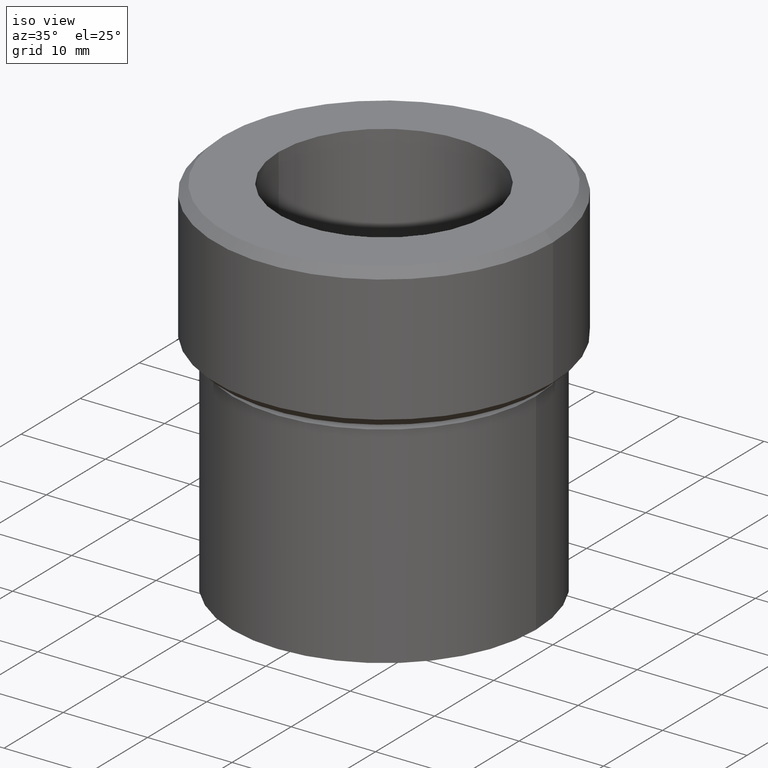
[diagram: clean part render]
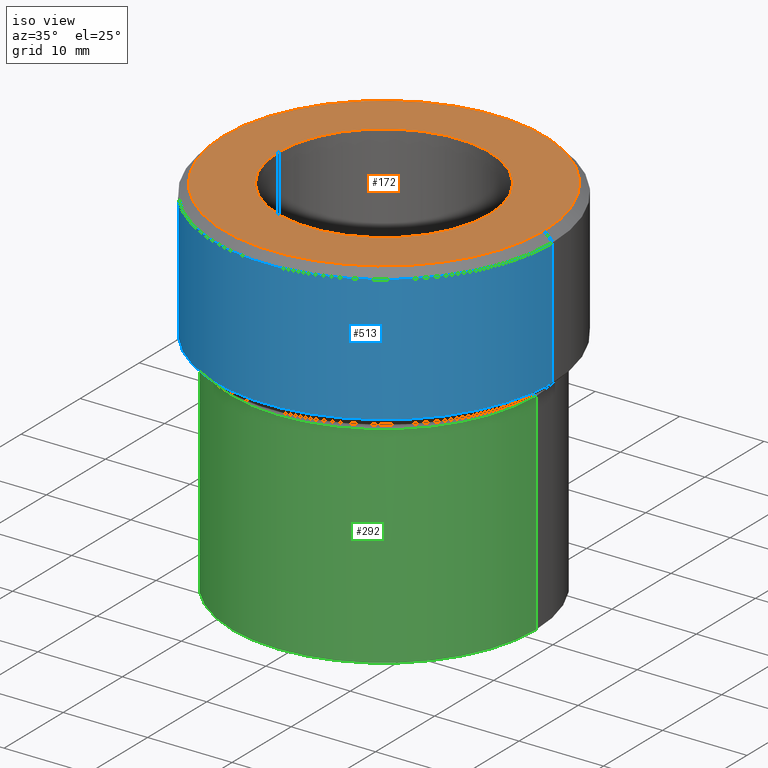
[diagram: same view with three faces highlighted in distinct colors, each labeled with its STEP entity id]
A machine part, iso view with three faces highlighted in distinct colors.
Their STEP definitions:

[orange] entity #172 — the highlighted planar face has unit normal (0, -0, 1).
#6 = CARTESIAN_POINT ( 'NONE',  ( 12.50000000000000000, 0.000000000000000000, 0.000000000000000000 ) ) ;
#29 = EDGE_LOOP ( 'NONE', ( #263, #333 ) ) ;
#34 = DIRECTION ( 'NONE',  ( -0.000000000000000000, -0.000000000000000000, 1.000000000000000000 ) ) ;
#38 = FACE_BOUND ( 'NONE', #29, .T. ) ;
#88 = AXIS2_PLACEMENT_3D ( 'NONE', #170, #214, #484 ) ;
#90 = CARTESIAN_POINT ( 'NONE',  ( 19.00000000000001066, 2.388061258337339728E-15, 0.000000000000000000 ) ) ;
#95 = CARTESIAN_POINT ( 'NONE',  ( 0.000000000000000000, 0.000000000000000000, 0.000000000000000000 ) ) ;
#100 = VERTEX_POINT ( 'NONE', #6 ) ;
#109 = VERTEX_POINT ( 'NONE', #234 ) ;
#129 = CARTESIAN_POINT ( 'NONE',  ( 0.000000000000000000, 0.000000000000000000, 0.000000000000000000 ) ) ;
#134 = CIRCLE ( 'NONE', #477, 19.00000000000001066 ) ;
#162 = EDGE_CURVE ( 'NONE', #100, #109, #495, .T. ) ;
#167 = CARTESIAN_POINT ( 'NONE',  ( 0.000000000000000000, 0.000000000000000000, 0.000000000000000000 ) ) ;
#170 = CARTESIAN_POINT ( 'NONE',  ( 0.000000000000000000, 0.000000000000000000, 0.000000000000000000 ) ) ;
#172 = ADVANCED_FACE ( 'NONE', ( #38, #401 ), #248, .T. ) ;
#191 = EDGE_CURVE ( 'NONE', #109, #100, #359, .T. ) ;
#209 = AXIS2_PLACEMENT_3D ( 'NONE', #167, #482, #441 ) ;
#214 = DIRECTION ( 'NONE',  ( -0.000000000000000000, -0.000000000000000000, 1.000000000000000000 ) ) ;
#234 = CARTESIAN_POINT ( 'NONE',  ( -12.50000000000000000, 1.530808498934191521E-15, 0.000000000000000000 ) ) ;
#246 = DIRECTION ( 'NONE',  ( 1.000000000000000000, 0.000000000000000000, 0.000000000000000000 ) ) ;
#248 = PLANE ( 'NONE',  #209 ) ;
#261 = ORIENTED_EDGE ( 'NONE', *, *, #273, .T. ) ;
#263 = ORIENTED_EDGE ( 'NONE', *, *, #162, .F. ) ;
#266 = EDGE_CURVE ( 'NONE', #505, #479, #134, .T. ) ;
#268 = AXIS2_PLACEMENT_3D ( 'NONE', #396, #427, #246 ) ;
#273 = EDGE_CURVE ( 'NONE', #479, #505, #430, .T. ) ;
#282 = DIRECTION ( 'NONE',  ( 1.000000000000000000, 0.000000000000000000, 0.000000000000000000 ) ) ;
#332 = DIRECTION ( 'NONE',  ( 1.000000000000000000, 0.000000000000000000, 0.000000000000000000 ) ) ;
#333 = ORIENTED_EDGE ( 'NONE', *, *, #191, .F. ) ;
#359 = CIRCLE ( 'NONE', #88, 12.50000000000000000 ) ;
#390 = EDGE_LOOP ( 'NONE', ( #481, #261 ) ) ;
#396 = CARTESIAN_POINT ( 'NONE',  ( 0.000000000000000000, 0.000000000000000000, 0.000000000000000000 ) ) ;
#401 = FACE_OUTER_BOUND ( 'NONE', #390, .T. ) ;
#427 = DIRECTION ( 'NONE',  ( -0.000000000000000000, -0.000000000000000000, 1.000000000000000000 ) ) ;
#430 = CIRCLE ( 'NONE', #268, 19.00000000000001066 ) ;
#439 = AXIS2_PLACEMENT_3D ( 'NONE', #129, #34, #332 ) ;
#441 = DIRECTION ( 'NONE',  ( 1.000000000000000000, 0.000000000000000000, 0.000000000000000000 ) ) ;
#458 = CARTESIAN_POINT ( 'NONE',  ( -19.00000000000001066, 0.000000000000000000, 0.000000000000000000 ) ) ;
#468 = DIRECTION ( 'NONE',  ( -0.000000000000000000, -0.000000000000000000, 1.000000000000000000 ) ) ;
#477 = AXIS2_PLACEMENT_3D ( 'NONE', #95, #468, #282 ) ;
#479 = VERTEX_POINT ( 'NONE', #90 ) ;
#481 = ORIENTED_EDGE ( 'NONE', *, *, #266, .T. ) ;
#482 = DIRECTION ( 'NONE',  ( 0.000000000000000000, -0.000000000000000000, 1.000000000000000000 ) ) ;
#484 = DIRECTION ( 'NONE',  ( 1.000000000000000000, 0.000000000000000000, 0.000000000000000000 ) ) ;
#495 = CIRCLE ( 'NONE', #439, 12.50000000000000000 ) ;
#505 = VERTEX_POINT ( 'NONE', #458 ) ;

[blue] entity #513 — the highlighted cylindrical surface (partial cylindrical patch) has radius 20 mm, axis along (-0, -0, 1).
#2 = VECTOR ( 'NONE', #78, 1000.000000000000000 ) ;
#11 = AXIS2_PLACEMENT_3D ( 'NONE', #447, #340, #424 ) ;
#78 = DIRECTION ( 'NONE',  ( -0.000000000000000000, -0.000000000000000000, 1.000000000000000000 ) ) ;
#83 = VERTEX_POINT ( 'NONE', #488 ) ;
#105 = AXIS2_PLACEMENT_3D ( 'NONE', #383, #135, #307 ) ;
#108 = ORIENTED_EDGE ( 'NONE', *, *, #236, .F. ) ;
#111 = EDGE_LOOP ( 'NONE', ( #108, #498, #119, #433 ) ) ;
#114 = DIRECTION ( 'NONE',  ( -0.000000000000000000, -0.000000000000000000, 1.000000000000000000 ) ) ;
#115 = CARTESIAN_POINT ( 'NONE',  ( 20.00000000000000000, 0.000000000000000000, -0.9999999999999904521 ) ) ;
#119 = ORIENTED_EDGE ( 'NONE', *, *, #463, .T. ) ;
#135 = DIRECTION ( 'NONE',  ( 0.000000000000000000, 0.000000000000000000, -1.000000000000000000 ) ) ;
#139 = CARTESIAN_POINT ( 'NONE',  ( -20.00000000000000000, 2.449293598294706513E-15, 0.000000000000000000 ) ) ;
#141 = CIRCLE ( 'NONE', #11, 20.00000000000000000 ) ;
#161 = DIRECTION ( 'NONE',  ( 1.000000000000000000, 0.000000000000000000, 0.000000000000000000 ) ) ;
#212 = LINE ( 'NONE', #299, #2 ) ;
#236 = EDGE_CURVE ( 'NONE', #440, #372, #357, .T. ) ;
#277 = CIRCLE ( 'NONE', #105, 20.00000000000000000 ) ;
#295 = AXIS2_PLACEMENT_3D ( 'NONE', #469, #114, #161 ) ;
#299 = CARTESIAN_POINT ( 'NONE',  ( 20.00000000000000000, 0.000000000000000000, 0.000000000000000000 ) ) ;
#307 = DIRECTION ( 'NONE',  ( 1.000000000000000000, 0.000000000000000000, 0.000000000000000000 ) ) ;
#340 = DIRECTION ( 'NONE',  ( -0.000000000000000000, -0.000000000000000000, 1.000000000000000000 ) ) ;
#347 = EDGE_CURVE ( 'NONE', #444, #372, #277, .T. ) ;
#357 = LINE ( 'NONE', #139, #486 ) ;
#372 = VERTEX_POINT ( 'NONE', #403 ) ;
#374 = EDGE_CURVE ( 'NONE', #440, #83, #141, .T. ) ;
#383 = CARTESIAN_POINT ( 'NONE',  ( 0.000000000000000000, 0.000000000000000000, -0.9999999999999904521 ) ) ;
#403 = CARTESIAN_POINT ( 'NONE',  ( -20.00000000000000000, 2.449293598294706513E-15, -0.9999999999999904521 ) ) ;
#424 = DIRECTION ( 'NONE',  ( -1.000000000000000000, 0.000000000000000000, 0.000000000000000000 ) ) ;
#433 = ORIENTED_EDGE ( 'NONE', *, *, #347, .T. ) ;
#437 = CYLINDRICAL_SURFACE ( 'NONE', #295, 20.00000000000000000 ) ;
#440 = VERTEX_POINT ( 'NONE', #442 ) ;
#442 = CARTESIAN_POINT ( 'NONE',  ( -20.00000000000000000, 2.449293598294706513E-15, -16.00000000000000355 ) ) ;
#444 = VERTEX_POINT ( 'NONE', #115 ) ;
#447 = CARTESIAN_POINT ( 'NONE',  ( 0.000000000000000000, 0.000000000000000000, -16.00000000000000355 ) ) ;
#463 = EDGE_CURVE ( 'NONE', #83, #444, #212, .T. ) ;
#469 = CARTESIAN_POINT ( 'NONE',  ( 0.000000000000000000, 0.000000000000000000, 0.000000000000000000 ) ) ;
#486 = VECTOR ( 'NONE', #504, 1000.000000000000000 ) ;
#488 = CARTESIAN_POINT ( 'NONE',  ( 20.00000000000000000, 0.000000000000000000, -16.00000000000000355 ) ) ;
#498 = ORIENTED_EDGE ( 'NONE', *, *, #374, .T. ) ;
#504 = DIRECTION ( 'NONE',  ( -0.000000000000000000, -0.000000000000000000, 1.000000000000000000 ) ) ;
#513 = ADVANCED_FACE ( 'NONE', ( #520 ), #437, .T. ) ;
#520 = FACE_OUTER_BOUND ( 'NONE', #111, .T. ) ;

[green] entity #292 — the highlighted cylindrical surface (partial cylindrical patch) has radius 18 mm, axis along (-0, -0, 1).
#10 = CIRCLE ( 'NONE', #386, 18.00000000000000355 ) ;
#22 = DIRECTION ( 'NONE',  ( -0.000000000000000000, -0.000000000000000000, 1.000000000000000000 ) ) ;
#33 = EDGE_CURVE ( 'NONE', #478, #102, #229, .T. ) ;
#43 = VERTEX_POINT ( 'NONE', #219 ) ;
#47 = CIRCLE ( 'NONE', #472, 18.00000000000000000 ) ;
#53 = EDGE_CURVE ( 'NONE', #43, #102, #47, .T. ) ;
#60 = EDGE_CURVE ( 'NONE', #256, #478, #10, .T. ) ;
#63 = FACE_OUTER_BOUND ( 'NONE', #258, .T. ) ;
#67 = CARTESIAN_POINT ( 'NONE',  ( -18.00000000000000355, 2.204364238465235822E-15, 0.000000000000000000 ) ) ;
#102 = VERTEX_POINT ( 'NONE', #530 ) ;
#104 = EDGE_CURVE ( 'NONE', #256, #43, #155, .T. ) ;
#110 = CYLINDRICAL_SURFACE ( 'NONE', #262, 18.00000000000000355 ) ;
#123 = VECTOR ( 'NONE', #196, 1000.000000000000000 ) ;
#153 = CARTESIAN_POINT ( 'NONE',  ( 0.000000000000000000, 0.000000000000000000, 0.000000000000000000 ) ) ;
#155 = LINE ( 'NONE', #67, #123 ) ;
#166 = CARTESIAN_POINT ( 'NONE',  ( 0.000000000000000000, 0.000000000000000000, -43.00000000000000000 ) ) ;
#178 = VECTOR ( 'NONE', #527, 1000.000000000000000 ) ;
#196 = DIRECTION ( 'NONE',  ( -0.000000000000000000, -0.000000000000000000, 1.000000000000000000 ) ) ;
#219 = CARTESIAN_POINT ( 'NONE',  ( -18.00000000000000000, 2.204364238465235428E-15, -18.00000000000000000 ) ) ;
#229 = LINE ( 'NONE', #260, #178 ) ;
#256 = VERTEX_POINT ( 'NONE', #309 ) ;
#258 = EDGE_LOOP ( 'NONE', ( #289, #517, #290, #376 ) ) ;
#260 = CARTESIAN_POINT ( 'NONE',  ( 18.00000000000000355, 0.000000000000000000, 0.000000000000000000 ) ) ;
#262 = AXIS2_PLACEMENT_3D ( 'NONE', #153, #22, #272 ) ;
#265 = CARTESIAN_POINT ( 'NONE',  ( 0.000000000000000000, 0.000000000000000000, -18.00000000000000000 ) ) ;
#267 = CARTESIAN_POINT ( 'NONE',  ( 18.00000000000000355, 0.000000000000000000, -43.00000000000000000 ) ) ;
#272 = DIRECTION ( 'NONE',  ( 1.000000000000000000, 0.000000000000000000, 0.000000000000000000 ) ) ;
#289 = ORIENTED_EDGE ( 'NONE', *, *, #104, .F. ) ;
#290 = ORIENTED_EDGE ( 'NONE', *, *, #33, .T. ) ;
#292 = ADVANCED_FACE ( 'NONE', ( #63 ), #110, .T. ) ;
#309 = CARTESIAN_POINT ( 'NONE',  ( -18.00000000000000355, 2.204364238465235822E-15, -43.00000000000000000 ) ) ;
#344 = DIRECTION ( 'NONE',  ( -0.000000000000000000, -0.000000000000000000, 1.000000000000000000 ) ) ;
#376 = ORIENTED_EDGE ( 'NONE', *, *, #53, .F. ) ;
#381 = DIRECTION ( 'NONE',  ( -0.000000000000000000, -0.000000000000000000, 1.000000000000000000 ) ) ;
#386 = AXIS2_PLACEMENT_3D ( 'NONE', #166, #344, #451 ) ;
#451 = DIRECTION ( 'NONE',  ( 1.000000000000000000, 0.000000000000000000, 0.000000000000000000 ) ) ;
#472 = AXIS2_PLACEMENT_3D ( 'NONE', #265, #381, #492 ) ;
#478 = VERTEX_POINT ( 'NONE', #267 ) ;
#492 = DIRECTION ( 'NONE',  ( 1.000000000000000000, 0.000000000000000000, 0.000000000000000000 ) ) ;
#517 = ORIENTED_EDGE ( 'NONE', *, *, #60, .T. ) ;
#527 = DIRECTION ( 'NONE',  ( -0.000000000000000000, -0.000000000000000000, 1.000000000000000000 ) ) ;
#530 = CARTESIAN_POINT ( 'NONE',  ( 18.00000000000000000, 0.000000000000000000, -18.00000000000000000 ) ) ;